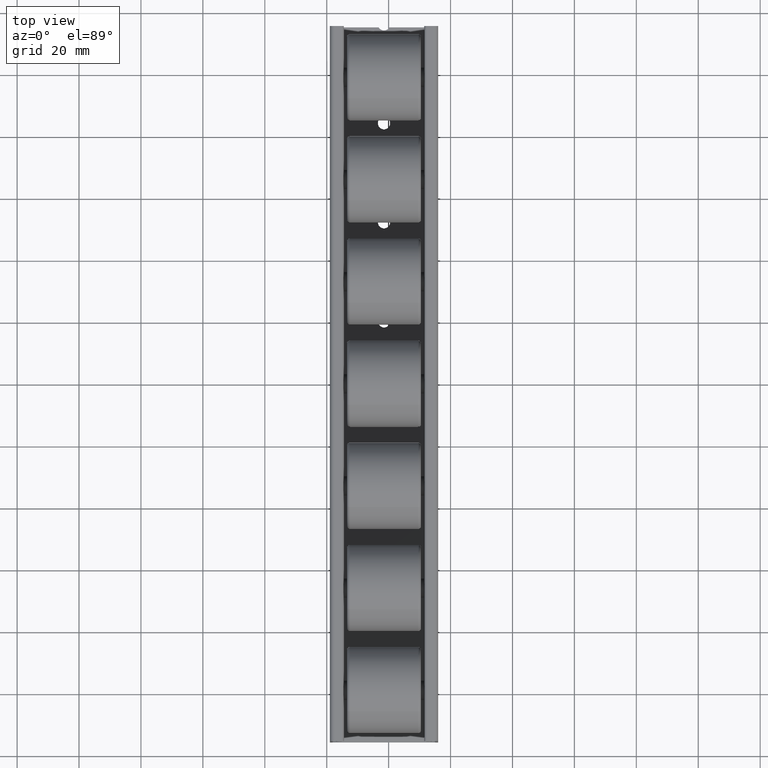
[diagram: clean part render]
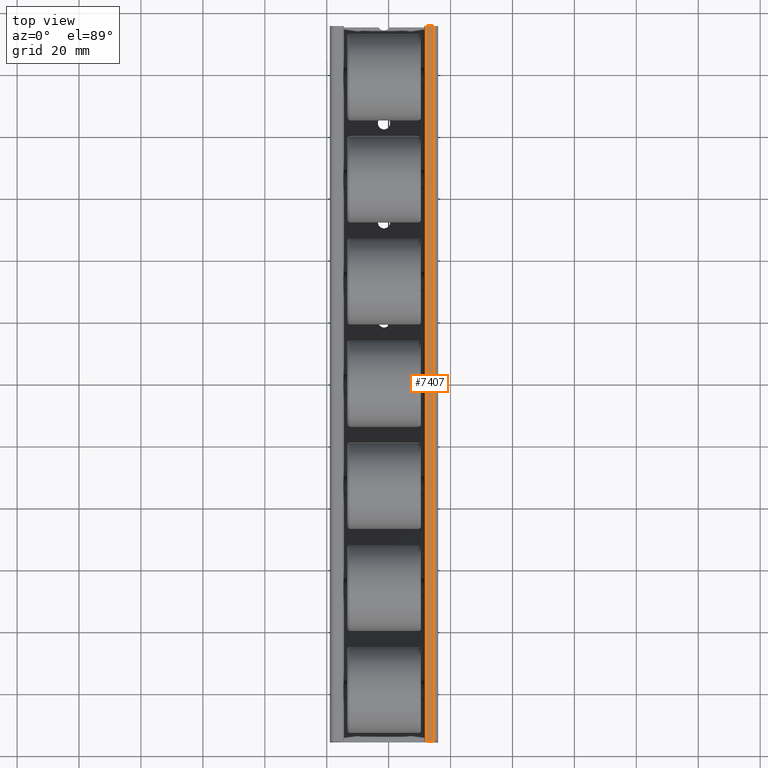
[diagram: same view with one face highlighted and labeled with its STEP entity id]
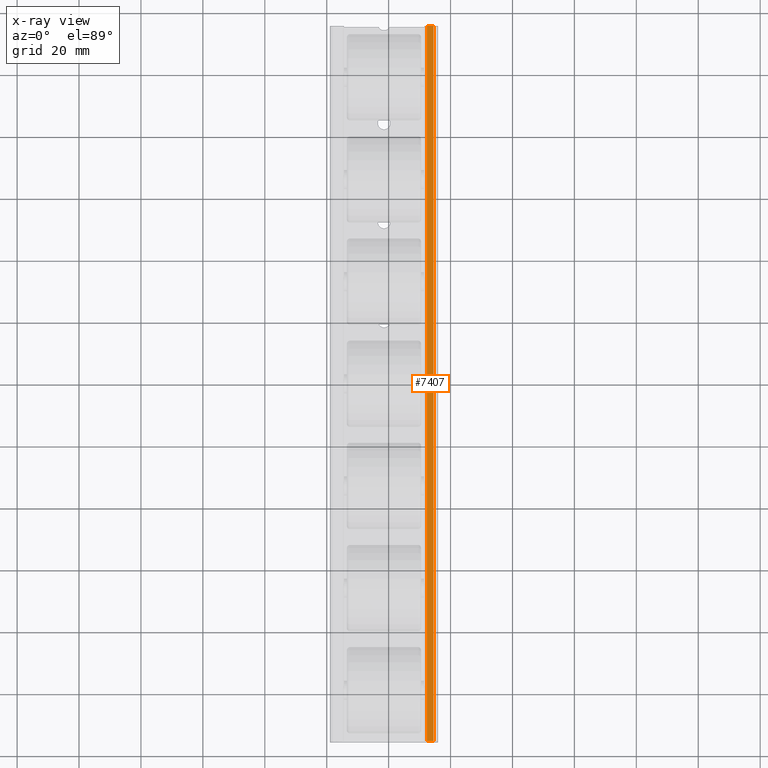
[diagram: x-ray of the same camera — body ghosted, the highlighted face saturated]
A machine part, top view. The second image highlights one B-rep face of the part: STEP entity #7407.
The next image is the same camera in x-ray: the body ghosted, the highlighted face saturated — about 0% of this face is hidden behind the body in this view.
In plain terms, the highlighted planar face has unit normal (0, 0, 1).
Its self-contained STEP definition (entity closure, byte-faithful):
#539=FACE_OUTER_BOUND('',#926,.T.);
#926=EDGE_LOOP('',(#6412,#6413,#6414,#6415));
#1810=LINE('',#11808,#2506);
#2019=LINE('',#12226,#2715);
#2045=LINE('',#12400,#2741);
#2046=LINE('',#12401,#2742);
#2506=VECTOR('',#9413,2.2);
#2715=VECTOR('',#9924,2.2);
#2741=VECTOR('',#10102,231.);
#2742=VECTOR('',#10103,231.);
#3368=VERTEX_POINT('',#11805);
#3369=VERTEX_POINT('',#11807);
#3426=VERTEX_POINT('',#12223);
#3427=VERTEX_POINT('',#12225);
#4215=EDGE_CURVE('',#3368,#3369,#1810,.T.);
#4451=EDGE_CURVE('',#3426,#3427,#2019,.T.);
#4533=EDGE_CURVE('',#3426,#3369,#2045,.T.);
#4534=EDGE_CURVE('',#3427,#3368,#2046,.T.);
#6412=ORIENTED_EDGE('',*,*,#4451,.F.);
#6413=ORIENTED_EDGE('',*,*,#4533,.T.);
#6414=ORIENTED_EDGE('',*,*,#4215,.F.);
#6415=ORIENTED_EDGE('',*,*,#4534,.F.);
#7081=PLANE('',#8128);
#7407=ADVANCED_FACE('',(#539),#7081,.T.);
#8128=AXIS2_PLACEMENT_3D('',#12399,#10100,#10101);
#9413=DIRECTION('',(-1.,-2.01858731750028E-15,0.));
#9924=DIRECTION('',(1.,2.01858731750028E-15,0.));
#10100=DIRECTION('center_axis',(-2.01858731750028E-15,1.,0.));
#10101=DIRECTION('ref_axis',(-1.,-1.95399252334028E-15,0.));
#10102=DIRECTION('',(0.,0.,1.));
#10103=DIRECTION('',(0.,0.,1.));
#11805=CARTESIAN_POINT('',(-5.76144776632026,14.3108189989122,231.));
#11807=CARTESIAN_POINT('',(-7.96144776632026,14.3108189989122,231.));
#11808=CARTESIAN_POINT('',(-7.96144776632026,14.3108189989122,231.));
#12223=CARTESIAN_POINT('',(-7.96144776632026,14.3108189989122,0.));
#12225=CARTESIAN_POINT('',(-5.76144776632026,14.3108189989122,0.));
#12226=CARTESIAN_POINT('',(-7.96144776632026,14.3108189989122,0.));
#12399=CARTESIAN_POINT('Origin',(-5.76144776632026,14.3108189989122,0.));
#12400=CARTESIAN_POINT('',(-7.96144776632026,14.3108189989122,0.));
#12401=CARTESIAN_POINT('',(-5.76144776632026,14.3108189989122,0.));